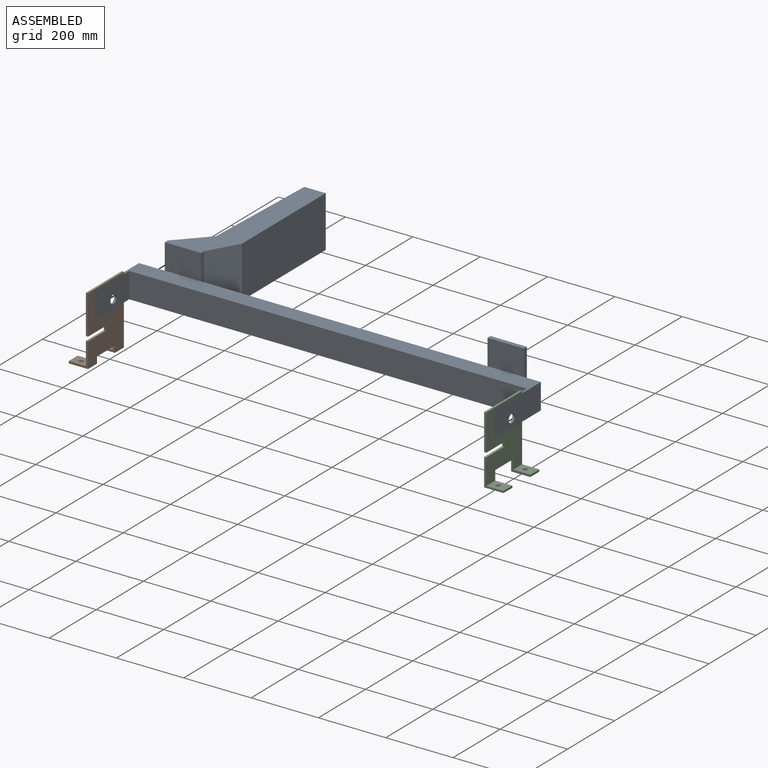
[diagram: assembled view]
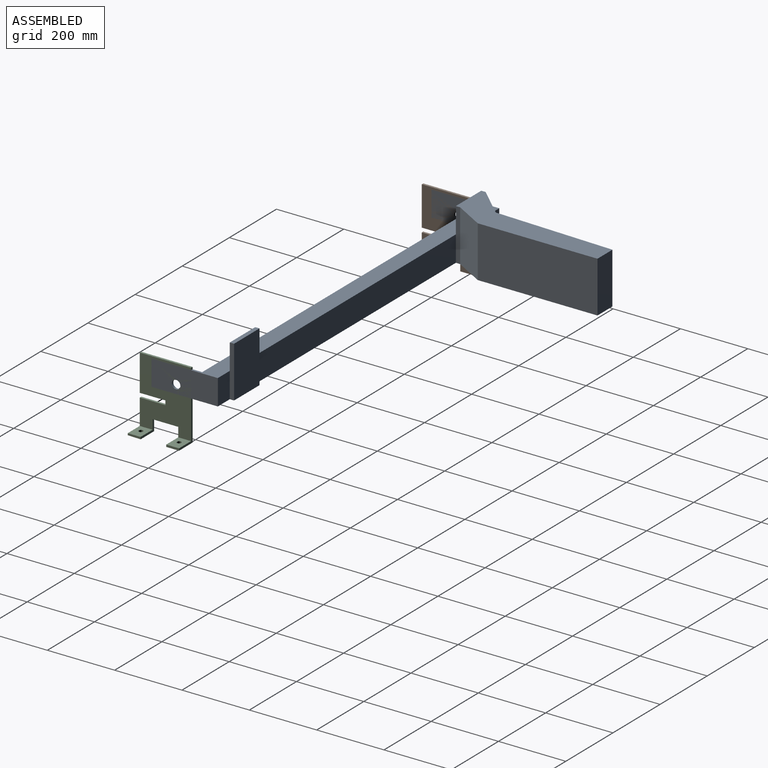
[diagram: assembled view, second angle]
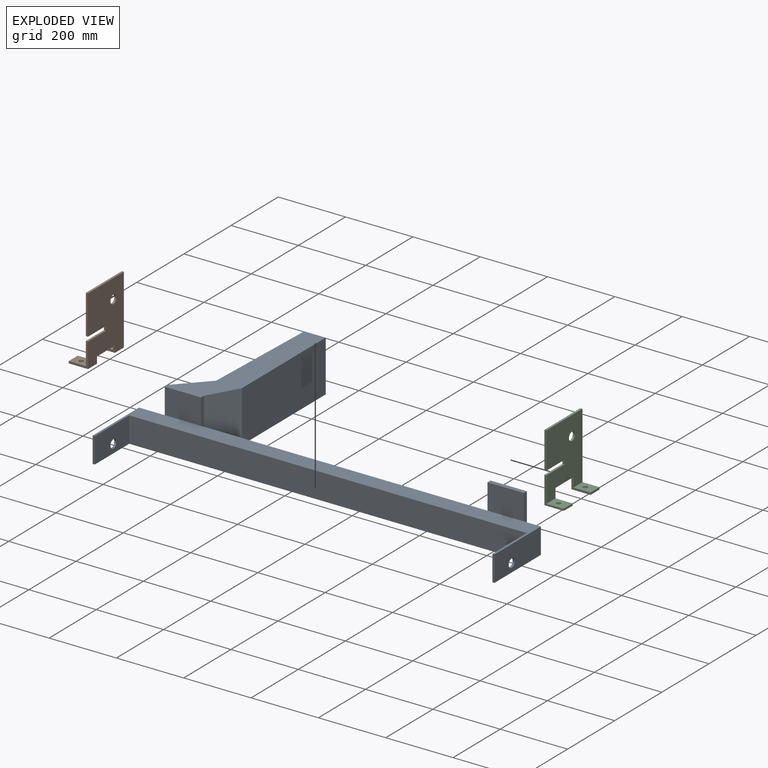
[diagram: exploded view]
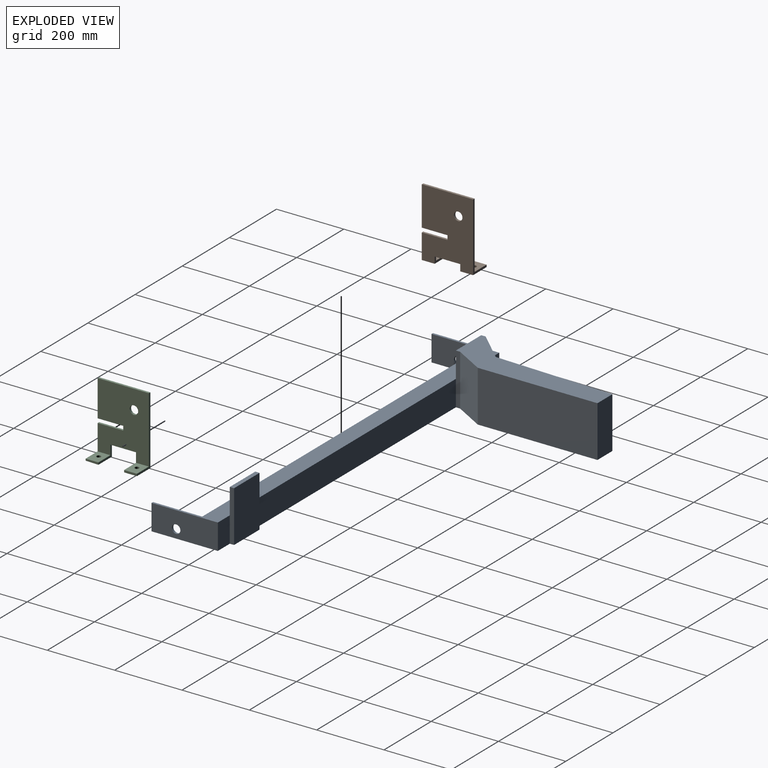
[diagram: exploded view, second angle]
ASSEMBLY  parts=3 mates=2
PART A: 28 faces, bbox 1193.8x653.1x152.4 mm
  f0: plane 76.2x76.2mm, normal (0,1,0), area 5806.4mm2, adj f3,f5,f6,f20
  f1: plane 850.9x76.2mm, normal (0,1,0), area 64838.6mm2, adj f3,f5,f15,f19
  f2: plane 1181.1x76.2mm, normal (0,-1,0), area 89999.8mm2, adj f3,f5,f8,f10
  f3: plane 1193.8x653.14mm, normal (0,0,-1), area 98182mm2, adj f0,f1,f2,f4,f6,f7,f8,f9
  f4: plane 196.85x76.2mm, normal (1,0,0), area 14493.3mm2, adj f3,f5,f7,f11,f13
  f5: plane 1193.8x196.85mm, normal (0,0,1), area 62499.9mm2, adj f0,f1,f2,f4,f6,f7,f8,f9
  f6: plane 196.85x76.2mm, normal (-1,0,0), area 14493.3mm2, adj f0,f3,f5,f9,f12
  f7: plane 76.2x50.8mm, normal (0,1,0), area 3871mm2, adj f3,f4,f5,f14
  f8: plane 146.05x76.2mm, normal (1,0,0), area 10622.3mm2, adj f2,f3,f5,f9,f12
  f9: plane 76.2x6.35mm, normal (0,-1,0), area 483.9mm2, adj f3,f5,f6,f8
  f10: plane 146.05x76.2mm, normal (-1,0,0), area 10622.3mm2, adj f2,f3,f5,f11,f13
  f11: plane 76.2x6.35mm, normal (0,-1,0), area 483.9mm2, adj f3,f4,f5,f10
  f12: cylinder r=12.7mm len=25.4mm, axis (1,0,0), area 506.7mm2, adj f6,f8
  f13: cylinder r=12.7mm len=25.4mm, axis (1,0,0), area 506.7mm2, adj f4,f10
  f14: plane 152.4x12.7mm, normal (1,0,0), area 1935.5mm2, adj f3,f7,f16,f17,f18
  f15: plane 152.4x12.7mm, normal (-1,0,0), area 1935.5mm2, adj f1,f3,f16,f17,f18
  f16: plane 107.95x12.7mm, normal (0,0,1), area 1371mm2, adj f14,f15,f17,f18
  f17: plane 152.4x107.95mm, normal (0,1,0), area 16451.6mm2, adj f3,f14,f15,f16
  f18: plane 107.95x76.2mm, normal (0,-1,0), area 8225.8mm2, adj f5,f14,f15,f16
  f19: plane 152.4x12.7mm, normal (1,0,0), area 1935.5mm2, adj f1,f3,f21,f22,f23
  f20: plane 152.4x12.7mm, normal (-1,0,0), area 1935.5mm2, adj f0,f3,f21,f22,f27
  f21: plane 456.29x158.75mm, normal (0,0,1), area 34311.1mm2, adj f19,f20,f22,f23,f24,f25,f26,f27
  f22: plane 107.95x76.2mm, normal (0,-1,0), area 8225.8mm2, adj f5,f19,f20,f21
  f23: plane 152.4x87.99mm, normal (0.87,-0.5,0), area 15483.8mm2, adj f3,f19,f21,f24
  f24: plane 355.6x152.4mm, normal (1,0,0), area 54193.4mm2, adj f3,f21,f23,f25
  f25: plane 152.4x63.5mm, normal (0,1,0), area 9677.4mm2, adj f3,f21,f24,f26
  f26: plane 355.6x152.4mm, normal (-1,0.04,0), area 54228mm2, adj f3,f21,f25,f27
  f27: plane 152.4x87.99mm, normal (-0.73,0.68,0), area 18387.1mm2, adj f3,f20,f21,f26
PART B: 21 faces, bbox 152.4x57.2x203.2 mm
  f0: plane 152.4x6.35mm, normal (0,0,1), area 967.7mm2, adj f1,f11,f13,f14
  f1: plane 116.31x6.35mm, normal (-1,0,0), area 738.6mm2, adj f0,f2,f13,f14
  f2: plane 76.33x6.35mm, normal (0,0,-1), area 484.7mm2, adj f1,f3,f13,f14
  f3: plane 12.92x6.35mm, normal (-1,0,0), area 82.1mm2, adj f2,f4,f13,f14
  f4: plane 76.33x6.35mm, normal (0,0,1), area 484.7mm2, adj f3,f5,f13,f14
  f5: plane 73.96x57.15mm, normal (-1,0,0), area 792.2mm2, adj f4,f6,f13,f14,f17,f18
  f6: plane 57.15x38.1mm, normal (0,0,-1), area 2050.7mm2, adj f5,f7,f13,f18,f19
  f7: plane 57.15x19.43mm, normal (1,0,0), area 445.9mm2, adj f6,f8,f13,f14,f17,f18
  f8: plane 76.2x6.35mm, normal (0,0,-1), area 483.9mm2, adj f7,f9,f13,f14
  f9: plane 57.15x19.43mm, normal (-1,0,0), area 445.9mm2, adj f8,f10,f13,f14,f15,f16
  f10: plane 57.15x38.1mm, normal (0,0,-1), area 2050.7mm2, adj f9,f11,f13,f16,f20
  f11: plane 203.2x57.15mm, normal (1,0,0), area 1612.9mm2, adj f0,f10,f13,f14,f15,f16
  f12: cylinder r=12.7mm len=25.4mm, axis (0,1,0), area 506.7mm2, adj f13,f14
  f13: plane 203.2x152.4mm, normal (0,-1,0), area 27994.3mm2, adj f0,f1,f2,f3,f4,f5,f6,f7
  f14: plane 196.85x152.4mm, normal (0,1,0), area 27510.4mm2, adj f0,f1,f2,f3,f4,f5,f7,f8
  f15: plane 50.8x38.1mm, normal (0,0,1), area 1808.8mm2, adj f9,f11,f14,f16,f20
  f16: plane 38.1x6.35mm, normal (0,1,0), area 241.9mm2, adj f9,f10,f11,f15
  f17: plane 50.8x38.1mm, normal (0,0,1), area 1808.8mm2, adj f5,f7,f14,f18,f19
  f18: plane 38.1x6.35mm, normal (0,1,0), area 241.9mm2, adj f5,f6,f7,f17
  f19: cylinder r=6.35mm len=12.7mm, axis (0,0,1), area 253.4mm2, adj f6,f17
  f20: cylinder r=6.35mm len=12.7mm, axis (0,0,1), area 253.4mm2, adj f10,f15
PART C: 21 faces, bbox 152.4x57.2x203.5 mm
  f0: plane 196.85x152.4mm, normal (0,-1,0), area 26383.9mm2, adj f1,f2,f3,f4,f5,f6,f8,f9
  f1: plane 152.4x6.35mm, normal (0,0,1), area 967.7mm2, adj f0,f2,f12,f14
  f2: plane 107.95x6.35mm, normal (-1,0,0), area 685.5mm2, adj f0,f1,f3,f14
  f3: plane 76.2x6.35mm, normal (0,0,-1), area 483.9mm2, adj f0,f2,f4,f14
  f4: plane 12.7x6.35mm, normal (-1,0,0), area 80.6mm2, adj f0,f3,f5,f14
  f5: plane 76.2x6.35mm, normal (0,0,1), area 483.9mm2, adj f0,f4,f6,f14
  f6: plane 81.74x57.15mm, normal (-1,0,0), area 800.3mm2, adj f0,f5,f7,f14,f15,f16
  f7: plane 57.15x38.1mm, normal (-0.02,0,-1), area 2051.2mm2, adj f6,f8,f14,f16,f20
  f8: plane 57.15x34.46mm, normal (1,0,0), area 541.4mm2, adj f0,f7,f9,f14,f15,f16
  f9: plane 76.2x6.35mm, normal (0,0,-1), area 483.9mm2, adj f0,f8,f10,f14
  f10: plane 57.15x34.46mm, normal (-1,0,0), area 541.4mm2, adj f0,f9,f11,f14,f17,f18
  f11: plane 57.15x38.1mm, normal (0,0,-1), area 2050.7mm2, adj f10,f12,f14,f18,f19
  f12: plane 203.2x57.15mm, normal (1,0,0), area 1612.9mm2, adj f0,f1,f11,f14,f17,f18
  f13: cylinder r=12.7mm len=25.4mm, axis (0,1,0), area 506.7mm2, adj f0,f14
  f14: plane 203.2x152.4mm, normal (0,1,0), area 26852.2mm2, adj f1,f2,f3,f4,f5,f6,f7,f8
  f15: plane 50.8x38.1mm, normal (0,0,1), area 1808.8mm2, adj f0,f6,f8,f16,f20
  f16: plane 38.1x6.35mm, normal (0,-1,0), area 226.5mm2, adj f6,f7,f8,f15
  f17: plane 50.8x38.1mm, normal (0,0,1), area 1808.8mm2, adj f0,f10,f12,f18,f19
  f18: plane 38.1x6.35mm, normal (0,-1,0), area 241.9mm2, adj f10,f11,f12,f17
  f19: cylinder r=6.35mm len=12.84mm, axis (-0.02,0,-1), area 253.4mm2, adj f11,f17
  f20: cylinder r=6.35mm len=12.83mm, axis (-0.02,0,-1), area 237.2mm2, adj f7,f15
PLACE A t=(-63.8,39.56,-26.93)mm fixed
PLACE B rot(axis=(0,0,1),90deg) t=(-660.7,-78.04,-39.63)mm
PLACE C rot(axis=(0,0,1),90deg) t=(526.75,-125.42,-110.47)mm
MATE revolute B.f12 <-> A.f12  axis (-1,0,0) through (-660.7,-78.04,-39.63)mm
MATE revolute C.f13 <-> A.f13  axis (1,0,0) through (533.1,-84.39,-39.63)mm
